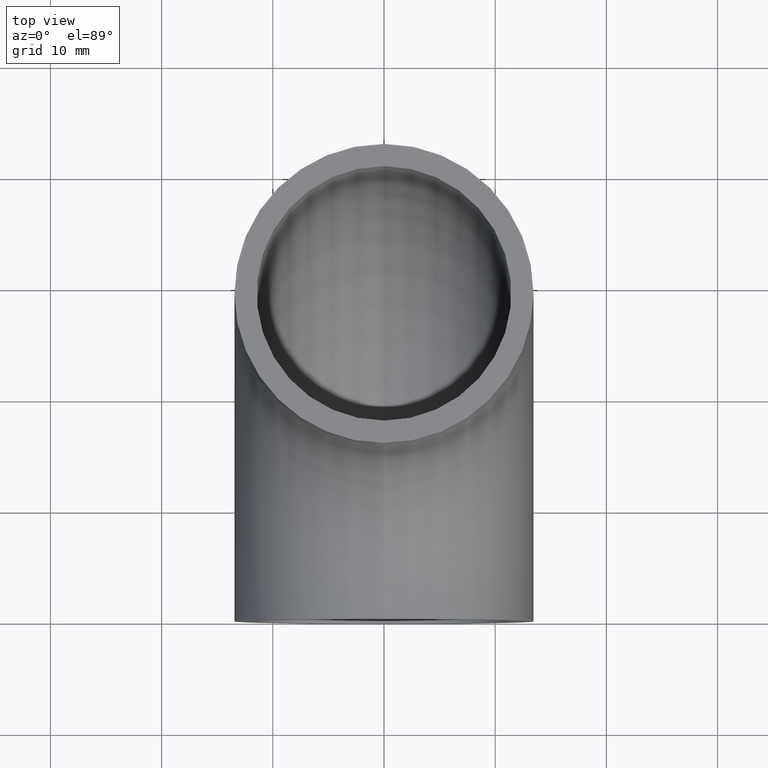
[diagram: clean part render]
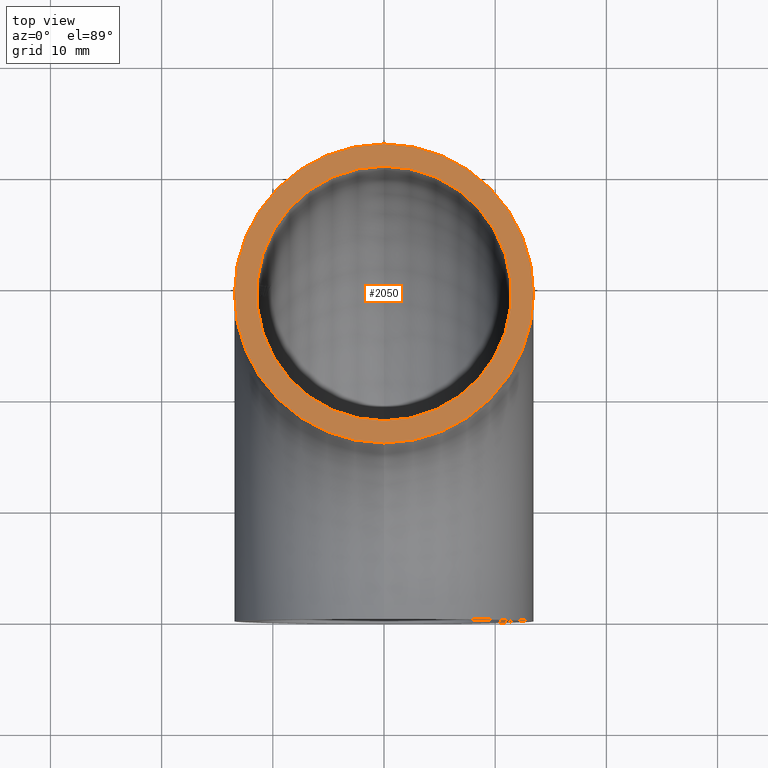
[diagram: same view with one face highlighted and labeled with its STEP entity id]
A machine part, top view. The second image highlights one B-rep face of the part: STEP entity #2050.
In plain terms, the highlighted planar face has unit normal (0, 0, 1).
Its self-contained STEP definition (entity closure, byte-faithful):
#45 = AXIS2_PLACEMENT_3D ( 'NONE', #98, #2601, #7167 ) ;
#98 = CARTESIAN_POINT ( 'NONE',  ( 0.0000000000000000000, 29.00000000000000000, -1.775737858763662000E-015 ) ) ;
#205 = DIRECTION ( 'NONE',  ( 0.0000000000000000000, 6.123233995736766000E-017, 1.000000000000000000 ) ) ;
#586 = CARTESIAN_POINT ( 'NONE',  ( 0.0000000000000000000, 17.55000000000000400, -1.074627566251802300E-015 ) ) ;
#838 = AXIS2_PLACEMENT_3D ( 'NONE', #1168, #1400, #4984 ) ;
#864 = ORIENTED_EDGE ( 'NONE', *, *, #10247, .F. ) ;
#875 = DIRECTION ( 'NONE',  ( 0.0000000000000000000, -1.000000000000000000, 6.123233995736764800E-017 ) ) ;
#929 = AXIS2_PLACEMENT_3D ( 'NONE', #8060, #4637, #10870 ) ;
#1168 = CARTESIAN_POINT ( 'NONE',  ( 0.0000000000000000000, 29.00000000000000000, -1.775737858763662000E-015 ) ) ;
#1400 = DIRECTION ( 'NONE',  ( 0.0000000000000000000, 6.123233995736766000E-017, 1.000000000000000000 ) ) ;
#1662 = VERTEX_POINT ( 'NONE', #5241 ) ;
#1985 = CARTESIAN_POINT ( 'NONE',  ( 0.0000000000000000000, 29.00000000000000000, -1.775737858763662000E-015 ) ) ;
#2050 = ADVANCED_FACE ( 'NONE', ( #4246, #9123 ), #11433, .T. ) ;
#2601 = DIRECTION ( 'NONE',  ( 0.0000000000000000000, 6.123233995736766000E-017, 1.000000000000000000 ) ) ;
#3185 = ORIENTED_EDGE ( 'NONE', *, *, #6005, .T. ) ;
#3458 = ORIENTED_EDGE ( 'NONE', *, *, #9905, .T. ) ;
#3810 = CARTESIAN_POINT ( 'NONE',  ( 0.0000000000000000000, 42.45000000000000300, -2.599312831190256900E-015 ) ) ;
#3963 = AXIS2_PLACEMENT_3D ( 'NONE', #10626, #11529, #875 ) ;
#4194 = CIRCLE ( 'NONE', #3963, 13.44999999999999900 ) ;
#4246 = FACE_BOUND ( 'NONE', #6637, .T. ) ;
#4637 = DIRECTION ( 'NONE',  ( 0.0000000000000000000, 6.123233995736766000E-017, 1.000000000000000000 ) ) ;
#4984 = DIRECTION ( 'NONE',  ( 0.0000000000000000000, -1.000000000000000000, 6.123233995736766000E-017 ) ) ;
#5241 = CARTESIAN_POINT ( 'NONE',  ( 0.0000000000000000000, 40.45000000000000300, -2.476848151275521800E-015 ) ) ;
#5471 = VERTEX_POINT ( 'NONE', #3810 ) ;
#6005 = EDGE_CURVE ( 'NONE', #11309, #5471, #8806, .T. ) ;
#6065 = ORIENTED_EDGE ( 'NONE', *, *, #6425, .F. ) ;
#6425 = EDGE_CURVE ( 'NONE', #1662, #9320, #10182, .T. ) ;
#6637 = EDGE_LOOP ( 'NONE', ( #864, #6065 ) ) ;
#7167 = DIRECTION ( 'NONE',  ( 0.0000000000000000000, -1.000000000000000000, 6.123233995736768500E-017 ) ) ;
#8060 = CARTESIAN_POINT ( 'NONE',  ( 0.0000000000000000000, 29.00000000000000000, -1.775737858763662000E-015 ) ) ;
#8297 = DIRECTION ( 'NONE',  ( 0.0000000000000000000, -1.000000000000000000, 6.123233995736764800E-017 ) ) ;
#8445 = EDGE_LOOP ( 'NONE', ( #3185, #3458 ) ) ;
#8491 = CIRCLE ( 'NONE', #929, 11.44999999999999800 ) ;
#8806 = CIRCLE ( 'NONE', #9401, 13.44999999999999900 ) ;
#9123 = FACE_OUTER_BOUND ( 'NONE', #8445, .T. ) ;
#9320 = VERTEX_POINT ( 'NONE', #586 ) ;
#9401 = AXIS2_PLACEMENT_3D ( 'NONE', #1985, #205, #8297 ) ;
#9905 = EDGE_CURVE ( 'NONE', #5471, #11309, #4194, .T. ) ;
#10182 = CIRCLE ( 'NONE', #45, 11.44999999999999800 ) ;
#10247 = EDGE_CURVE ( 'NONE', #9320, #1662, #8491, .T. ) ;
#10626 = CARTESIAN_POINT ( 'NONE',  ( 0.0000000000000000000, 29.00000000000000000, -1.775737858763662000E-015 ) ) ;
#10870 = DIRECTION ( 'NONE',  ( 0.0000000000000000000, -1.000000000000000000, 6.123233995736768500E-017 ) ) ;
#11121 = CARTESIAN_POINT ( 'NONE',  ( 0.0000000000000000000, 15.55000000000000100, -9.521628863370671200E-016 ) ) ;
#11309 = VERTEX_POINT ( 'NONE', #11121 ) ;
#11433 = PLANE ( 'NONE',  #838 ) ;
#11529 = DIRECTION ( 'NONE',  ( 0.0000000000000000000, 6.123233995736766000E-017, 1.000000000000000000 ) ) ;